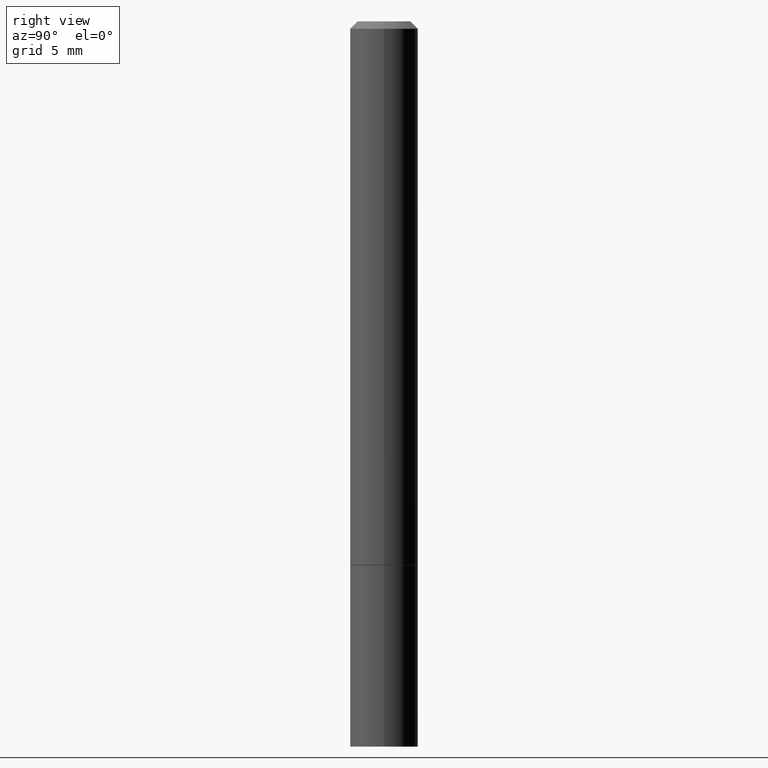
[diagram: clean part render]
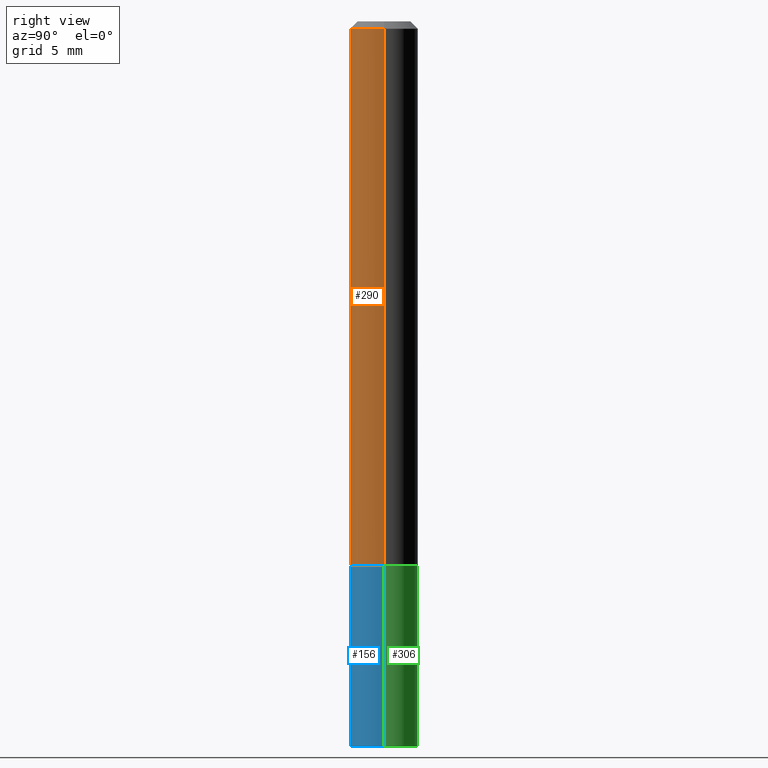
[diagram: same view with three faces highlighted in distinct colors, each labeled with its STEP entity id]
A machine part, right view with three faces highlighted in distinct colors.
Their STEP definitions:

[orange] entity #290 — the highlighted cylindrical surface (edge-blend (fillet) strip) has radius 2.3812 mm, axis along (-0, 0, 1).
#13 = CARTESIAN_POINT ( 'NONE',  ( 3.665757740471518732E-29, -5.233730526925875170E-15, -1.498999999999999666 ) ) ;
#21 = CARTESIAN_POINT ( 'NONE',  ( -0.09375000000000001388, -1.985646262076272943E-15, -1.498999999999999666 ) ) ;
#40 = VECTOR ( 'NONE', #208, 39.37007874015748143 ) ;
#42 = DIRECTION ( 'NONE',  ( -2.445468806185136597E-29, 3.491481338843145583E-15, 1.000000000000000000 ) ) ;
#43 = VERTEX_POINT ( 'NONE', #21 ) ;
#44 = CYLINDRICAL_SURFACE ( 'NONE', #263, 0.09374999999999991673 ) ;
#57 = AXIS2_PLACEMENT_3D ( 'NONE', #13, #294, #73 ) ;
#73 = DIRECTION ( 'NONE',  ( 1.000000000000000000, -6.982962677686261189E-15, 0.000000000000000000 ) ) ;
#76 = CARTESIAN_POINT ( 'NONE',  ( 4.890937612370282792E-31, -6.982962677686303935E-17, -0.02000000000000003858 ) ) ;
#78 = VERTEX_POINT ( 'NONE', #133 ) ;
#88 = EDGE_CURVE ( 'NONE', #341, #78, #103, .T. ) ;
#103 = LINE ( 'NONE', #335, #203 ) ;
#126 = DIRECTION ( 'NONE',  ( 1.000000000000000000, -6.982962677686266711E-15, 4.876176775795935793E-29 ) ) ;
#133 = CARTESIAN_POINT ( 'NONE',  ( 0.09374999999999981959, -7.130013140679429031E-16, -0.02000000000000003858 ) ) ;
#153 = EDGE_CURVE ( 'NONE', #43, #204, #154, .T. ) ;
#154 = LINE ( 'NONE', #212, #40 ) ;
#165 = FACE_OUTER_BOUND ( 'NONE', #363, .T. ) ;
#193 = DIRECTION ( 'NONE',  ( -2.445468806185136877E-29, 3.491481338843145188E-15, 1.000000000000000000 ) ) ;
#199 = ORIENTED_EDGE ( 'NONE', *, *, #88, .T. ) ;
#202 = ORIENTED_EDGE ( 'NONE', *, *, #153, .F. ) ;
#203 = VECTOR ( 'NONE', #193, 39.37007874015748143 ) ;
#204 = VERTEX_POINT ( 'NONE', #238 ) ;
#208 = DIRECTION ( 'NONE',  ( -2.445468806185136877E-29, 3.491481338843145188E-15, 1.000000000000000000 ) ) ;
#212 = CARTESIAN_POINT ( 'NONE',  ( -0.09374999999999991673, 6.661338147750933326E-16, -4.611501647113969791E-30 ) ) ;
#222 = CARTESIAN_POINT ( 'NONE',  ( 0.000000000000000000, 0.000000000000000000, 0.000000000000000000 ) ) ;
#238 = CARTESIAN_POINT ( 'NONE',  ( -0.09374999999999981959, 5.848231242562232198E-16, -0.02000000000000003858 ) ) ;
#240 = AXIS2_PLACEMENT_3D ( 'NONE', #76, #42, #269 ) ;
#263 = AXIS2_PLACEMENT_3D ( 'NONE', #222, #276, #126 ) ;
#269 = DIRECTION ( 'NONE',  ( 1.000000000000000000, -6.982962677686267499E-15, 0.000000000000000000 ) ) ;
#276 = DIRECTION ( 'NONE',  ( -2.445468806185136597E-29, 3.491481338843145583E-15, 1.000000000000000000 ) ) ;
#290 = ADVANCED_FACE ( 'NONE', ( #165 ), #44, .T. ) ;
#293 = CIRCLE ( 'NONE', #57, 0.09375000000000001388 ) ;
#294 = DIRECTION ( 'NONE',  ( -2.445468806185136597E-29, 3.491481338843145583E-15, 1.000000000000000000 ) ) ;
#301 = CARTESIAN_POINT ( 'NONE',  ( 0.09375000000000001388, -5.888383277958961885E-15, -1.498999999999999666 ) ) ;
#311 = ORIENTED_EDGE ( 'NONE', *, *, #340, .T. ) ;
#316 = ORIENTED_EDGE ( 'NONE', *, *, #346, .F. ) ;
#335 = CARTESIAN_POINT ( 'NONE',  ( 0.09374999999999991673, -6.546527510330869125E-16, 4.571415727308685602E-30 ) ) ;
#340 = EDGE_CURVE ( 'NONE', #43, #341, #293, .T. ) ;
#341 = VERTEX_POINT ( 'NONE', #301 ) ;
#346 = EDGE_CURVE ( 'NONE', #204, #78, #347, .T. ) ;
#347 = CIRCLE ( 'NONE', #240, 0.09374999999999981959 ) ;
#363 = EDGE_LOOP ( 'NONE', ( #202, #311, #199, #316 ) ) ;

[blue] entity #156 — the highlighted cylindrical surface (edge-blend (fillet) strip) has radius 2.3813 mm, axis along (-0, 0, 1).
#3 = ORIENTED_EDGE ( 'NONE', *, *, #364, .F. ) ;
#5 = DIRECTION ( 'NONE',  ( -2.445468806185136597E-29, 3.491481338843145583E-15, 1.000000000000000000 ) ) ;
#15 = AXIS2_PLACEMENT_3D ( 'NONE', #119, #5, #288 ) ;
#18 = CARTESIAN_POINT ( 'NONE',  ( 0.09375000000000001388, -6.546527510330875041E-16, 4.571415727308690506E-30 ) ) ;
#29 = VECTOR ( 'NONE', #158, 39.37007874015748143 ) ;
#38 = VERTEX_POINT ( 'NONE', #355 ) ;
#66 = EDGE_CURVE ( 'NONE', #356, #38, #190, .T. ) ;
#67 = CARTESIAN_POINT ( 'NONE',  ( -0.09375000000000001388, -5.443958528200409958E-15, -2.000000000000000000 ) ) ;
#95 = ORIENTED_EDGE ( 'NONE', *, *, #264, .T. ) ;
#99 = DIRECTION ( 'NONE',  ( -2.445468806185136597E-29, 3.491481338843145583E-15, 1.000000000000000000 ) ) ;
#119 = CARTESIAN_POINT ( 'NONE',  ( 0.000000000000000000, 0.000000000000000000, 0.000000000000000000 ) ) ;
#120 = CARTESIAN_POINT ( 'NONE',  ( 0.09375000000000001388, -5.891874759297804892E-15, -1.499999999999999778 ) ) ;
#128 = DIRECTION ( 'NONE',  ( -2.445468806185136877E-29, 3.491481338843145188E-15, 1.000000000000000000 ) ) ;
#135 = VECTOR ( 'NONE', #128, 39.37007874015748143 ) ;
#149 = VERTEX_POINT ( 'NONE', #242 ) ;
#155 = LINE ( 'NONE', #18, #135 ) ;
#156 = ADVANCED_FACE ( 'NONE', ( #267 ), #205, .T. ) ;
#158 = DIRECTION ( 'NONE',  ( -2.445468806185136877E-29, 3.491481338843145188E-15, 1.000000000000000000 ) ) ;
#181 = DIRECTION ( 'NONE',  ( -2.445468806185136597E-29, 3.491481338843145583E-15, 1.000000000000000000 ) ) ;
#182 = CIRCLE ( 'NONE', #215, 0.09375000000000001388 ) ;
#184 = DIRECTION ( 'NONE',  ( 1.000000000000000000, -6.982962677686261189E-15, 0.000000000000000000 ) ) ;
#185 = VERTEX_POINT ( 'NONE', #120 ) ;
#190 = LINE ( 'NONE', #280, #29 ) ;
#191 = ORIENTED_EDGE ( 'NONE', *, *, #66, .F. ) ;
#205 = CYLINDRICAL_SURFACE ( 'NONE', #15, 0.09375000000000001388 ) ;
#210 = CIRCLE ( 'NONE', #315, 0.09375000000000001388 ) ;
#215 = AXIS2_PLACEMENT_3D ( 'NONE', #351, #99, #220 ) ;
#220 = DIRECTION ( 'NONE',  ( 1.000000000000000000, -6.982962677686261189E-15, 0.000000000000000000 ) ) ;
#223 = CARTESIAN_POINT ( 'NONE',  ( 3.668203209277704335E-29, -5.237222008264717388E-15, -1.499999999999999778 ) ) ;
#242 = CARTESIAN_POINT ( 'NONE',  ( 0.09375000000000001388, -7.637615428719378669E-15, -2.000000000000000000 ) ) ;
#264 = EDGE_CURVE ( 'NONE', #356, #149, #182, .T. ) ;
#267 = FACE_OUTER_BOUND ( 'NONE', #303, .T. ) ;
#278 = ORIENTED_EDGE ( 'NONE', *, *, #343, .T. ) ;
#280 = CARTESIAN_POINT ( 'NONE',  ( -0.09375000000000001388, 6.661338147750940229E-16, -4.611501647113973995E-30 ) ) ;
#288 = DIRECTION ( 'NONE',  ( 1.000000000000000000, -6.982962677686265922E-15, 4.876176775795935793E-29 ) ) ;
#303 = EDGE_LOOP ( 'NONE', ( #191, #95, #278, #3 ) ) ;
#315 = AXIS2_PLACEMENT_3D ( 'NONE', #223, #181, #184 ) ;
#343 = EDGE_CURVE ( 'NONE', #149, #185, #155, .T. ) ;
#351 = CARTESIAN_POINT ( 'NONE',  ( 4.890937612370273194E-29, -6.982962677686291165E-15, -2.000000000000000000 ) ) ;
#355 = CARTESIAN_POINT ( 'NONE',  ( -0.09375000000000001388, -5.443958528200409958E-15, -1.499999999999999778 ) ) ;
#356 = VERTEX_POINT ( 'NONE', #67 ) ;
#364 = EDGE_CURVE ( 'NONE', #38, #185, #210, .T. ) ;

[green] entity #306 — the highlighted cylindrical surface (edge-blend (fillet) strip) has radius 2.3813 mm, axis along (-0, 0, 1).
#12 = DIRECTION ( 'NONE',  ( -2.445468806185136597E-29, 3.491481338843145583E-15, 1.000000000000000000 ) ) ;
#18 = CARTESIAN_POINT ( 'NONE',  ( 0.09375000000000001388, -6.546527510330875041E-16, 4.571415727308690506E-30 ) ) ;
#29 = VECTOR ( 'NONE', #158, 39.37007874015748143 ) ;
#38 = VERTEX_POINT ( 'NONE', #355 ) ;
#39 = CIRCLE ( 'NONE', #116, 0.09375000000000001388 ) ;
#46 = CIRCLE ( 'NONE', #64, 0.09375000000000001388 ) ;
#47 = DIRECTION ( 'NONE',  ( 1.000000000000000000, -6.982962677686265922E-15, 4.876176775795935793E-29 ) ) ;
#64 = AXIS2_PLACEMENT_3D ( 'NONE', #308, #12, #92 ) ;
#66 = EDGE_CURVE ( 'NONE', #356, #38, #190, .T. ) ;
#67 = CARTESIAN_POINT ( 'NONE',  ( -0.09375000000000001388, -5.443958528200409958E-15, -2.000000000000000000 ) ) ;
#91 = FACE_OUTER_BOUND ( 'NONE', #248, .T. ) ;
#92 = DIRECTION ( 'NONE',  ( 1.000000000000000000, -6.982962677686261189E-15, 0.000000000000000000 ) ) ;
#96 = EDGE_CURVE ( 'NONE', #149, #356, #46, .T. ) ;
#113 = ORIENTED_EDGE ( 'NONE', *, *, #343, .F. ) ;
#116 = AXIS2_PLACEMENT_3D ( 'NONE', #270, #201, #174 ) ;
#120 = CARTESIAN_POINT ( 'NONE',  ( 0.09375000000000001388, -5.891874759297804892E-15, -1.499999999999999778 ) ) ;
#128 = DIRECTION ( 'NONE',  ( -2.445468806185136877E-29, 3.491481338843145188E-15, 1.000000000000000000 ) ) ;
#131 = EDGE_CURVE ( 'NONE', #185, #38, #39, .T. ) ;
#132 = CYLINDRICAL_SURFACE ( 'NONE', #302, 0.09375000000000001388 ) ;
#135 = VECTOR ( 'NONE', #128, 39.37007874015748143 ) ;
#149 = VERTEX_POINT ( 'NONE', #242 ) ;
#155 = LINE ( 'NONE', #18, #135 ) ;
#158 = DIRECTION ( 'NONE',  ( -2.445468806185136877E-29, 3.491481338843145188E-15, 1.000000000000000000 ) ) ;
#174 = DIRECTION ( 'NONE',  ( 1.000000000000000000, -6.982962677686261189E-15, 0.000000000000000000 ) ) ;
#185 = VERTEX_POINT ( 'NONE', #120 ) ;
#189 = CARTESIAN_POINT ( 'NONE',  ( 0.000000000000000000, 0.000000000000000000, 0.000000000000000000 ) ) ;
#190 = LINE ( 'NONE', #280, #29 ) ;
#201 = DIRECTION ( 'NONE',  ( -2.445468806185136597E-29, 3.491481338843145583E-15, 1.000000000000000000 ) ) ;
#242 = CARTESIAN_POINT ( 'NONE',  ( 0.09375000000000001388, -7.637615428719378669E-15, -2.000000000000000000 ) ) ;
#243 = ORIENTED_EDGE ( 'NONE', *, *, #66, .T. ) ;
#244 = DIRECTION ( 'NONE',  ( -2.445468806185136597E-29, 3.491481338843145583E-15, 1.000000000000000000 ) ) ;
#248 = EDGE_LOOP ( 'NONE', ( #281, #243, #277, #113 ) ) ;
#270 = CARTESIAN_POINT ( 'NONE',  ( 3.668203209277704335E-29, -5.237222008264717388E-15, -1.499999999999999778 ) ) ;
#277 = ORIENTED_EDGE ( 'NONE', *, *, #131, .F. ) ;
#280 = CARTESIAN_POINT ( 'NONE',  ( -0.09375000000000001388, 6.661338147750940229E-16, -4.611501647113973995E-30 ) ) ;
#281 = ORIENTED_EDGE ( 'NONE', *, *, #96, .T. ) ;
#302 = AXIS2_PLACEMENT_3D ( 'NONE', #189, #244, #47 ) ;
#306 = ADVANCED_FACE ( 'NONE', ( #91 ), #132, .T. ) ;
#308 = CARTESIAN_POINT ( 'NONE',  ( 4.890937612370273194E-29, -6.982962677686291165E-15, -2.000000000000000000 ) ) ;
#343 = EDGE_CURVE ( 'NONE', #149, #185, #155, .T. ) ;
#355 = CARTESIAN_POINT ( 'NONE',  ( -0.09375000000000001388, -5.443958528200409958E-15, -1.499999999999999778 ) ) ;
#356 = VERTEX_POINT ( 'NONE', #67 ) ;